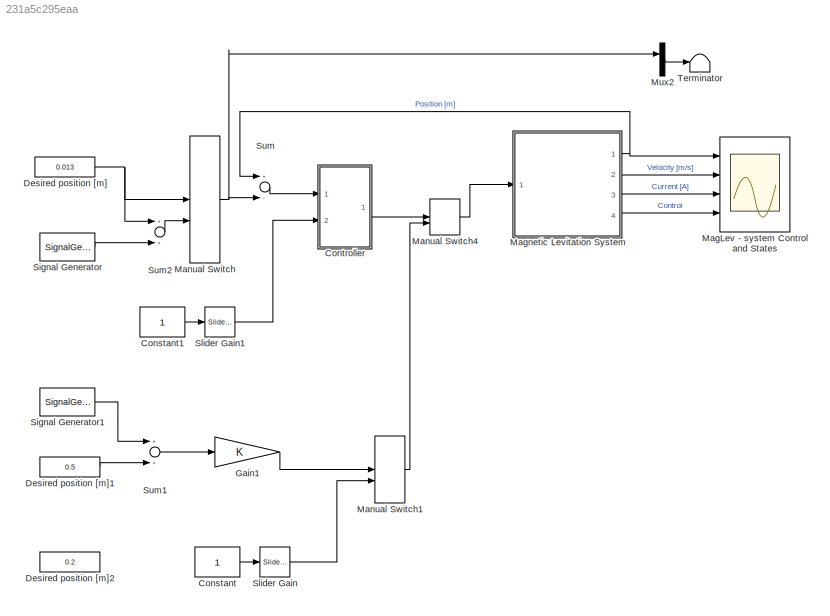
MODEL slx_231a5c295eaa
KIND model
CONFIG AbsTol = 1e-6
CONFIG FixedStep = 0.001
CONFIG MaxStep = auto
CONFIG MinStep = auto
CONFIG PostLoadFcn = load ML_Sensor
CONFIG RelTol = 1e-3
CONFIG SampleTimeConstraint = Unconstrained
CONFIG Solver = ode5
CONFIG SolverMode = SingleTasking
CONFIG SolverName = ode5
CONFIG StartTime = 0.0
CONFIG StopTime = 1000
BLOCK [Constant] Constant
BLOCK [Constant] Constant1
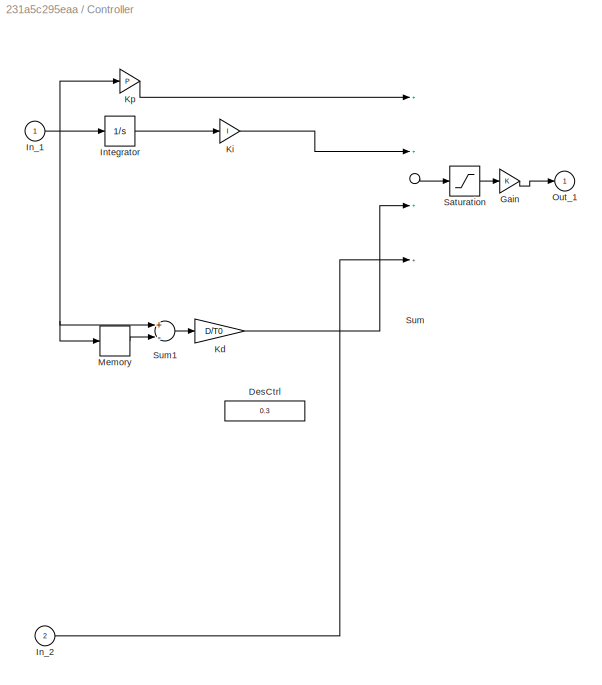
BLOCK [SubSystem] Controller
  Ports = [2, 1]
  RequestExecContextInheritance = off
BLOCK [Constant] Controller/DesCtrl
  Value = 0.3
BLOCK [Gain] Controller/Gain
BLOCK [Inport] Controller/In_1
  IconDisplay = Port number
BLOCK [Inport] Controller/In_2
  IconDisplay = Port number
  Port = 2
BLOCK [Integrator] Controller/Integrator
  InitialCondition = 0*4e-5
  LimitOutput = on
  LowerSaturationLimit = -1
  Ports = [1, 1]
  UpperSaturationLimit = 1
BLOCK [Gain] Controller/Kd
  Gain = D/T0
BLOCK [Gain] Controller/Ki
  Gain = I
BLOCK [Gain] Controller/Kp
  Gain = P
BLOCK [Memory] Controller/Memory
BLOCK [Outport] Controller/Out_1
  IconDisplay = Port number
  InitialOutput = 0
BLOCK [Saturate] Controller/Saturation
  InputPortMap = u0
  LowerLimit = 0
  Ports = [1, 1]
  UpperLimit = 1
BLOCK [Sum] Controller/Sum
  Inputs = ++++
  Ports = [4, 1]
BLOCK [Sum] Controller/Sum1
  Inputs = +-
  Ports = [2, 1]
BLOCK [Constant] Desired position [m]
  Value = 0.013
BLOCK [Constant] Desired position [m]1
  Value = 0.5
BLOCK [Constant] Desired position [m]2
  Value = 0.2
BLOCK [Gain] Gain1
  OutDataTypeStr = Inherit: Inherit via internal rule
  ParamDataTypeStr = Inherit: Inherit via internal rule
  SaturateOnIntegerOverflow = off
BLOCK [Scope] MagLev - system Control and States
  DataFormat = StructureWithTime
  ExtModeLoggingTrig = on
  ExtModeUploadOption = log
  Floating = off
  LimitDataPoints = off
  MaxDataPoints = 10000
  NumInputPorts = 4
  Ports = [4]
  SampleTime = 0
  SaveName = ident
  SaveToWorkspace = on
  TimeRange = 20
  YMax = 0.01403~0.035~1.38~0.55
  YMin = 0.01388~-0.035~1.32~0.38
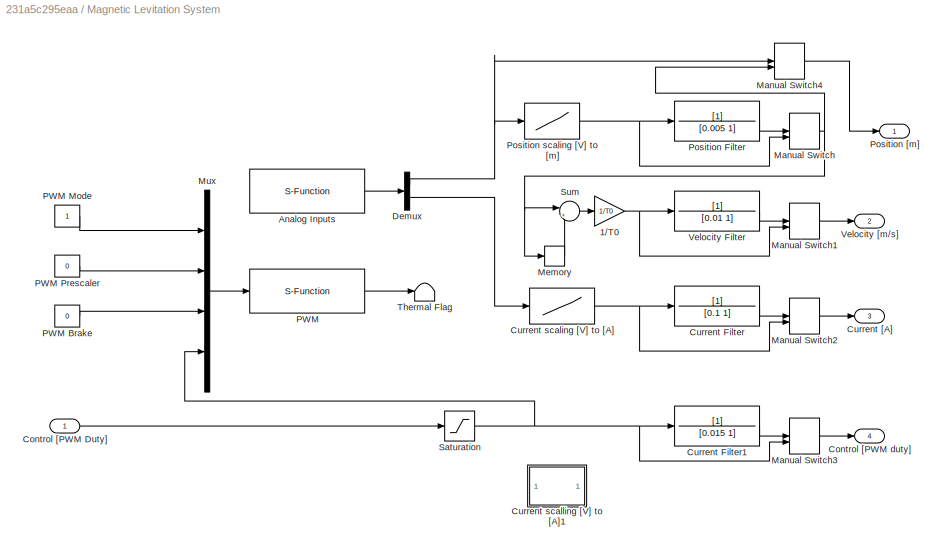
BLOCK [SubSystem] Magnetic Levitation System
  Ports = [1, 4]
  RequestExecContextInheritance = off
BLOCK [Gain] Magnetic Levitation System/1//T0
  Gain = 1/T0
BLOCK [S-Function] Magnetic Levitation System/Analog Inputs
  FunctionName = ML_AnalogInputs
  Parameters = BA, [4 2], [1 1], T0
  Ports = [0, 1]
BLOCK [Inport] Magnetic Levitation System/Control [PWM Duty]
  IconDisplay = Port number
BLOCK [Outport] Magnetic Levitation System/Control [PWM duty]
  IconDisplay = Port number
  Port = 4
BLOCK [TransferFcn] Magnetic Levitation System/Current Filter
  Denominator = [0.1 1]
BLOCK [TransferFcn] Magnetic Levitation System/Current Filter1
  Denominator = [0.015 1]
BLOCK [Outport] Magnetic Levitation System/Current [A]
  IconDisplay = Port number
  Port = 3
BLOCK [Lookup] Magnetic Levitation System/Current scaling [V] to [A] 
  InputValues = SensorData.Current_input
  Table = SensorData.Current_output
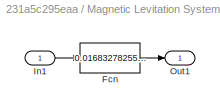
BLOCK [SubSystem] Magnetic Levitation System/Current scalling [V] to [A]1
  Commented = on
  Ports = [1, 1]
  RequestExecContextInheritance = off
BLOCK [Fcn] Magnetic Levitation System/Current scalling [V] to [A]1/Fcn
  Expr = 0.01683278255001*u(1)^2 +1.04509985660788*u(1) - 0.03168808638247
BLOCK [Inport] Magnetic Levitation System/Current scalling [V] to [A]1/In1
  IconDisplay = Port number
BLOCK [Outport] Magnetic Levitation System/Current scalling [V] to [A]1/Out1
  IconDisplay = Port number
BLOCK [Demux] Magnetic Levitation System/Demux
  Outputs = 2
  Ports = [1, 2]
BLOCK [ManualSwitch] Magnetic Levitation System/Manual Switch
  CurrentSetting = 0
BLOCK [ManualSwitch] Magnetic Levitation System/Manual Switch1
  CurrentSetting = 0
BLOCK [ManualSwitch] Magnetic Levitation System/Manual Switch2
  CurrentSetting = 0
BLOCK [ManualSwitch] Magnetic Levitation System/Manual Switch3
  CurrentSetting = 0
BLOCK [ManualSwitch] Magnetic Levitation System/Manual Switch4
  CurrentSetting = 0
BLOCK [Memory] Magnetic Levitation System/Memory
BLOCK [Mux] Magnetic Levitation System/Mux
  DisplayOption = bar
  Ports = [4, 1]
BLOCK [S-Function] Magnetic Levitation System/PWM
  FunctionName = ML_PWM
  Parameters = BA, T0
  Ports = [1, 1]
BLOCK [Constant] Magnetic Levitation System/PWM Brake
  Value = 0
BLOCK [Constant] Magnetic Levitation System/PWM Mode
BLOCK [Constant] Magnetic Levitation System/PWM Prescaler
  Value = 0
BLOCK [TransferFcn] Magnetic Levitation System/Position Filter
  Denominator = [0.005 1]
BLOCK [Outport] Magnetic Levitation System/Position [m]
  IconDisplay = Port number
BLOCK [Lookup] Magnetic Levitation System/Position scaling [V] to [m]
  InputValues = SensorData.Sensor_V(end:-1:1)
  Table = SensorData.Distance_m(end:-1:1)
BLOCK [Saturate] Magnetic Levitation System/Saturation
  InputPortMap = u0
  LowerLimit = 0
  Ports = [1, 1]
  UpperLimit = 1
BLOCK [Sum] Magnetic Levitation System/Sum
  IconShape = round
  Inputs = |+-
  Ports = [2, 1]
BLOCK [Terminator] Magnetic Levitation System/Thermal Flag
BLOCK [TransferFcn] Magnetic Levitation System/Velocity Filter
  Denominator = [0.01 1]
BLOCK [Outport] Magnetic Levitation System/Velocity [m//s]
  IconDisplay = Port number
  Port = 2
BLOCK [ManualSwitch] Manual Switch
BLOCK [ManualSwitch] Manual Switch1
  CurrentSetting = 0
BLOCK [ManualSwitch] Manual Switch4
BLOCK [Mux] Mux2
  DisplayOption = bar
  Inputs = 2
  Ports = [2, 1]
BLOCK [SignalGenerator] Signal Generator
  Amplitude = 1e-3
  Frequency = 0.25
  Ports = [0, 1]
BLOCK [SignalGenerator] Signal Generator1
  Amplitude = 0.5
  Frequency = 200
  Ports = [0, 1]
  WaveForm = square
BLOCK [Reference] Slider Gain  REF=simulink/Math
Operations/Slider
Gain
  Ports = [1, 1]
  SourceBlock = simulink/Math\nOperations/Slider\nGain
  SourceType = Slider Gain
  gain = 0
  high = 1
  low = 0
BLOCK [Reference] Slider Gain1  REF=simulink/Math
Operations/Slider
Gain
  Ports = [1, 1]
  SourceBlock = simulink/Math\nOperations/Slider\nGain
  SourceType = Slider Gain
  gain = 0.52
  high = 1
  low = 0
BLOCK [Sum] Sum
  Inputs = +-
  Ports = [2, 1]
BLOCK [Sum] Sum1
  Ports = [2, 1]
BLOCK [Sum] Sum2
  Ports = [2, 1]
BLOCK [Terminator] Terminator
LINE Constant1:1 -> Slider Gain1:1
LINE Constant:1 -> Slider Gain:1
LINE Controller/Gain:1 -> Controller/Out_1:1
NET Controller/In_1:1 -> Controller/Integrator:1, Controller/Kp:1, Controller/Memory:1, Controller/Sum1:1
LINE Controller/In_2:1 -> Controller/Sum:4
LINE Controller/Integrator:1 -> Controller/Ki:1
LINE Controller/Kd:1 -> Controller/Sum:3
LINE Controller/Ki:1 -> Controller/Sum:2
LINE Controller/Kp:1 -> Controller/Sum:1
LINE Controller/Memory:1 -> Controller/Sum1:2
LINE Controller/Saturation:1 -> Controller/Gain:1
LINE Controller/Sum1:1 -> Controller/Kd:1
LINE Controller/Sum:1 -> Controller/Saturation:1
LINE Controller:1 -> Manual Switch4:1
LINE Desired position [m]1:1 -> Sum1:2
NET Desired position [m]:1 -> Manual Switch:1, Sum2:1
LINE Gain1:1 -> Manual Switch1:1
NET Magnetic Levitation System/1//T0:1 -> Magnetic Levitation System/Manual Switch1:2, Magnetic Levitation System/Velocity Filter:1
LINE Magnetic Levitation System/Analog Inputs:1 -> Magnetic Levitation System/Demux:1
LINE Magnetic Levitation System/Control [PWM Duty]:1 -> Magnetic Levitation System/Saturation:1
LINE Magnetic Levitation System/Current Filter1:1 -> Magnetic Levitation System/Manual Switch3:1
LINE Magnetic Levitation System/Current Filter:1 -> Magnetic Levitation System/Manual Switch2:1
NET Magnetic Levitation System/Current scaling [V] to [A] :1 -> Magnetic Levitation System/Current Filter:1, Magnetic Levitation System/Manual Switch2:2
LINE Magnetic Levitation System/Current scalling [V] to [A]1/Fcn:1 -> Magnetic Levitation System/Current scalling [V] to [A]1/Out1:1
LINE Magnetic Levitation System/Current scalling [V] to [A]1/In1:1 -> Magnetic Levitation System/Current scalling [V] to [A]1/Fcn:1
NET Magnetic Levitation System/Demux:1 -> Magnetic Levitation System/Manual Switch4:1, Magnetic Levitation System/Position scaling [V] to [m]:1
LINE Magnetic Levitation System/Demux:2 -> Magnetic Levitation System/Current scaling [V] to [A] :1
LINE Magnetic Levitation System/Manual Switch1:1 -> Magnetic Levitation System/Velocity [m//s]:1
LINE Magnetic Levitation System/Manual Switch2:1 -> Magnetic Levitation System/Current [A]:1
LINE Magnetic Levitation System/Manual Switch3:1 -> Magnetic Levitation System/Control [PWM duty]:1
LINE Magnetic Levitation System/Manual Switch4:1 -> Magnetic Levitation System/Position [m]:1
NET Magnetic Levitation System/Manual Switch:1 -> Magnetic Levitation System/Manual Switch4:2, Magnetic Levitation System/Memory:1, Magnetic Levitation System/Sum:1
LINE Magnetic Levitation System/Memory:1 -> Magnetic Levitation System/Sum:2
LINE Magnetic Levitation System/Mux:1 -> Magnetic Levitation System/PWM:1
LINE Magnetic Levitation System/PWM Brake:1 -> Magnetic Levitation System/Mux:3
LINE Magnetic Levitation System/PWM Mode:1 -> Magnetic Levitation System/Mux:1
LINE Magnetic Levitation System/PWM Prescaler:1 -> Magnetic Levitation System/Mux:2
LINE Magnetic Levitation System/PWM:1 -> Magnetic Levitation System/Thermal Flag:1
LINE Magnetic Levitation System/Position Filter:1 -> Magnetic Levitation System/Manual Switch:1
NET Magnetic Levitation System/Position scaling [V] to [m]:1 -> Magnetic Levitation System/Manual Switch:2, Magnetic Levitation System/Position Filter:1
NET Magnetic Levitation System/Saturation:1 -> Magnetic Levitation System/Current Filter1:1, Magnetic Levitation System/Manual Switch3:2, Magnetic Levitation System/Mux:4
LINE Magnetic Levitation System/Sum:1 -> Magnetic Levitation System/1//T0:1
LINE Magnetic Levitation System/Velocity Filter:1 -> Magnetic Levitation System/Manual Switch1:1
NET Magnetic Levitation System:1 -> MagLev - system Control and States:1, Sum:1
LINE Magnetic Levitation System:2 -> MagLev - system Control and States:2
LINE Magnetic Levitation System:3 -> MagLev - system Control and States:3
LINE Magnetic Levitation System:4 -> MagLev - system Control and States:4
LINE Manual Switch1:1 -> Manual Switch4:2
LINE Manual Switch4:1 -> Magnetic Levitation System:1
NET Manual Switch:1 -> Mux2:1, Sum:2
LINE Mux2:1 -> Terminator:1
LINE Signal Generator1:1 -> Sum1:1
LINE Signal Generator:1 -> Sum2:2
LINE Slider Gain1:1 -> Controller:2
LINE Slider Gain:1 -> Manual Switch1:2
LINE Sum1:1 -> Gain1:1
LINE Sum2:1 -> Manual Switch:2
LINE Sum:1 -> Controller:1
note: NET lines group one-source signal fan-out (src -> all destinations, sorted); 1:1 wires keep LINE
